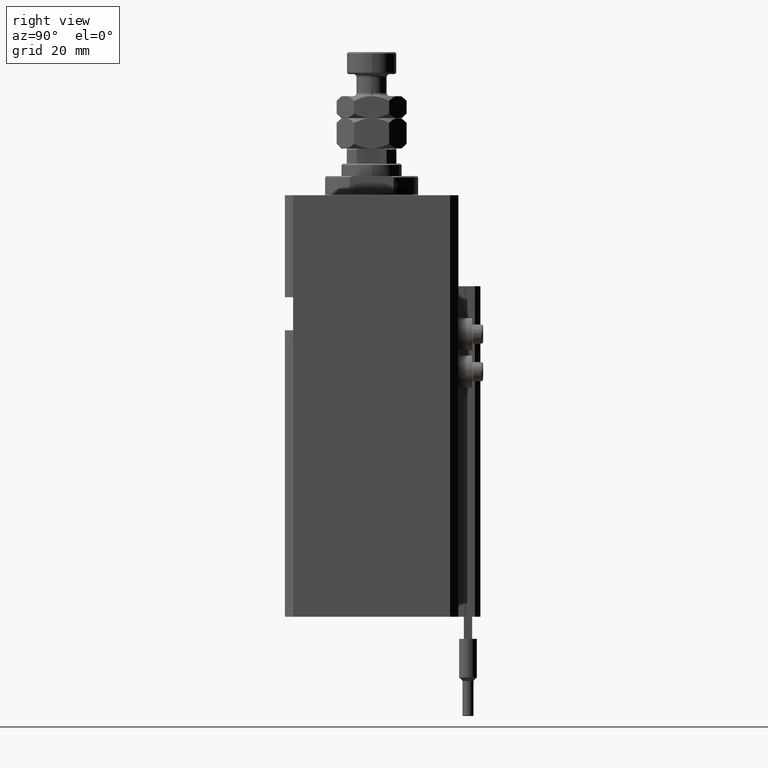
[diagram: clean part render]
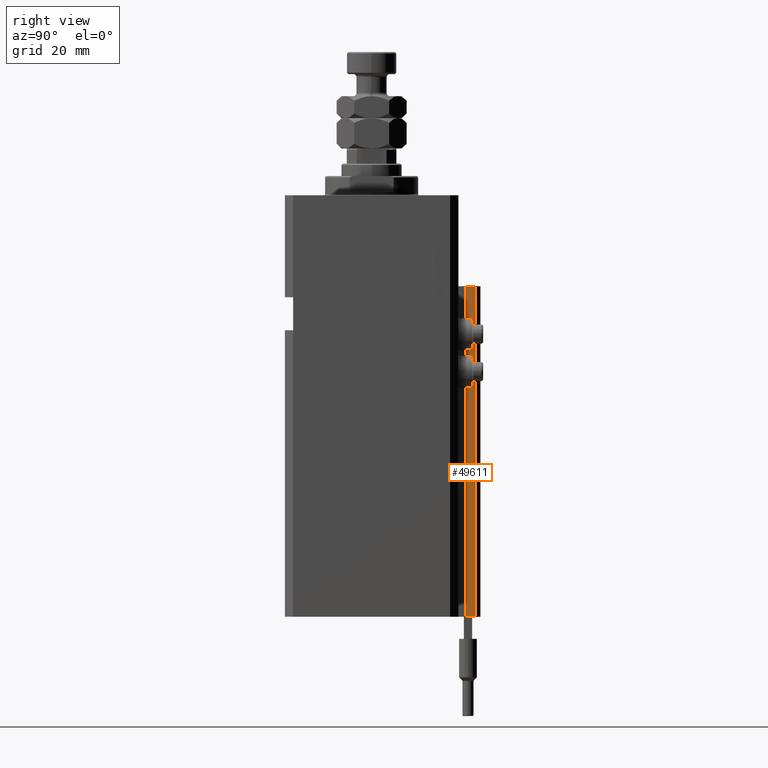
[diagram: same view with one face highlighted and labeled with its STEP entity id]
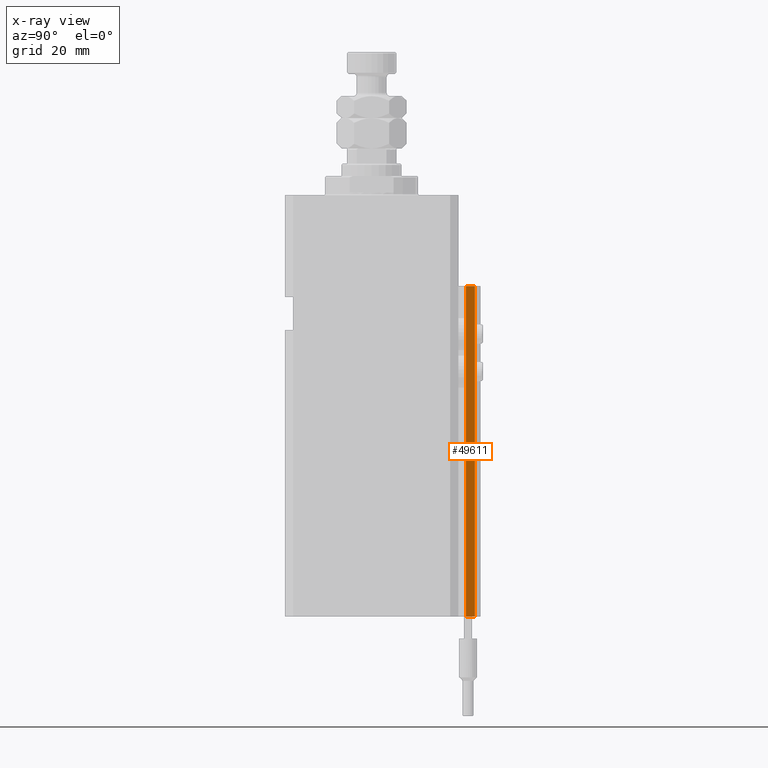
[diagram: x-ray of the same camera — body ghosted, the highlighted face saturated]
A machine part, right view. The second image highlights one B-rep face of the part: STEP entity #49611.
The next image is the same camera in x-ray: the body ghosted, the highlighted face saturated — about 0% of this face is hidden behind the body in this view.
In plain terms, the highlighted planar face has unit normal (1, 0, 0).
Its self-contained STEP definition (entity closure, byte-faithful):
#403 = CARTESIAN_POINT ( 'NONE',  ( 11.99999999999999822, 34.20000000000002416, -153.0000000000000000 ) ) ;
#730 = VERTEX_POINT ( 'NONE', #29114 ) ;
#3272 = LINE ( 'NONE', #46237, #32715 ) ;
#3412 = CARTESIAN_POINT ( 'NONE',  ( 12.00000000000000178, 34.20000000000002416, -33.00000000000000000 ) ) ;
#6571 = DIRECTION ( 'NONE',  ( -5.256737805990328981E-16, 1.000000000000000000, 0.000000000000000000 ) ) ;
#7456 = ORIENTED_EDGE ( 'NONE', *, *, #27641, .F. ) ;
#7501 = DIRECTION ( 'NONE',  ( -5.256737805990328981E-16, 1.000000000000000000, 0.000000000000000000 ) ) ;
#7562 = DIRECTION ( 'NONE',  ( -5.256737805990329967E-16, 1.000000000000000000, 0.000000000000000000 ) ) ;
#7807 = DIRECTION ( 'NONE',  ( 1.000000000000000000, 5.256737805990329967E-16, -0.000000000000000000 ) ) ;
#8056 = PLANE ( 'NONE',  #33537 ) ;
#11184 = DIRECTION ( 'NONE',  ( 0.000000000000000000, 0.000000000000000000, 1.000000000000000000 ) ) ;
#14520 = DIRECTION ( 'NONE',  ( 0.000000000000000000, 0.000000000000000000, 1.000000000000000000 ) ) ;
#17259 = CARTESIAN_POINT ( 'NONE',  ( 11.99999999999999822, 34.20000000000002416, -33.00000000000000000 ) ) ;
#18059 = LINE ( 'NONE', #41343, #37312 ) ;
#22341 = VERTEX_POINT ( 'NONE', #17259 ) ;
#23570 = VECTOR ( 'NONE', #14520, 1000.000000000000000 ) ;
#23628 = CARTESIAN_POINT ( 'NONE',  ( 12.00000000000000178, 34.20000000000002416, -153.0000000000000000 ) ) ;
#23976 = ORIENTED_EDGE ( 'NONE', *, *, #28244, .T. ) ;
#25768 = LINE ( 'NONE', #49578, #23570 ) ;
#27473 = FACE_OUTER_BOUND ( 'NONE', #39018, .T. ) ;
#27641 = EDGE_CURVE ( 'NONE', #22341, #730, #42534, .T. ) ;
#28244 = EDGE_CURVE ( 'NONE', #44829, #730, #25768, .T. ) ;
#29114 = CARTESIAN_POINT ( 'NONE',  ( 12.00000000000000000, 37.50000000000002132, -33.00000000000000000 ) ) ;
#32715 = VECTOR ( 'NONE', #11184, 1000.000000000000000 ) ;
#33058 = VERTEX_POINT ( 'NONE', #403 ) ;
#33537 = AXIS2_PLACEMENT_3D ( 'NONE', #23628, #7807, #7562 ) ;
#37312 = VECTOR ( 'NONE', #6571, 1000.000000000000000 ) ;
#38049 = EDGE_CURVE ( 'NONE', #33058, #44829, #18059, .T. ) ;
#39018 = EDGE_LOOP ( 'NONE', ( #7456, #44369, #44257, #23976 ) ) ;
#39957 = VECTOR ( 'NONE', #7501, 1000.000000000000000 ) ;
#40772 = CARTESIAN_POINT ( 'NONE',  ( 12.00000000000000000, 37.50000000000002132, -153.0000000000000000 ) ) ;
#41343 = CARTESIAN_POINT ( 'NONE',  ( 12.00000000000000178, 34.20000000000002416, -153.0000000000000000 ) ) ;
#42534 = LINE ( 'NONE', #3412, #39957 ) ;
#44257 = ORIENTED_EDGE ( 'NONE', *, *, #38049, .T. ) ;
#44369 = ORIENTED_EDGE ( 'NONE', *, *, #48446, .F. ) ;
#44829 = VERTEX_POINT ( 'NONE', #40772 ) ;
#46237 = CARTESIAN_POINT ( 'NONE',  ( 11.99999999999999822, 34.20000000000002416, -153.0000000000000000 ) ) ;
#48446 = EDGE_CURVE ( 'NONE', #33058, #22341, #3272, .T. ) ;
#49578 = CARTESIAN_POINT ( 'NONE',  ( 12.00000000000000000, 37.50000000000002132, -153.0000000000000000 ) ) ;
#49611 = ADVANCED_FACE ( 'NONE', ( #27473 ), #8056, .T. ) ;